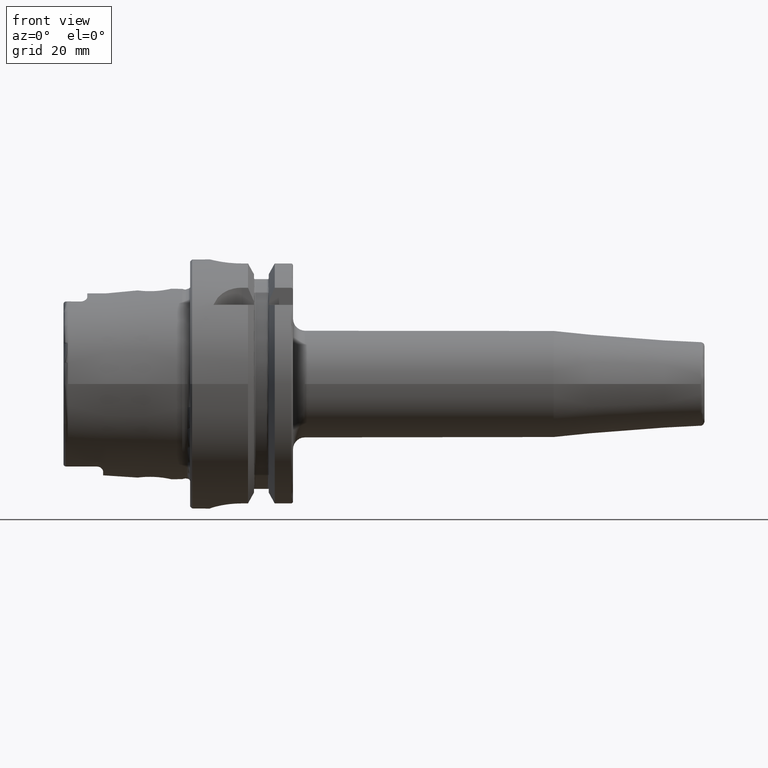
[diagram: clean part render]
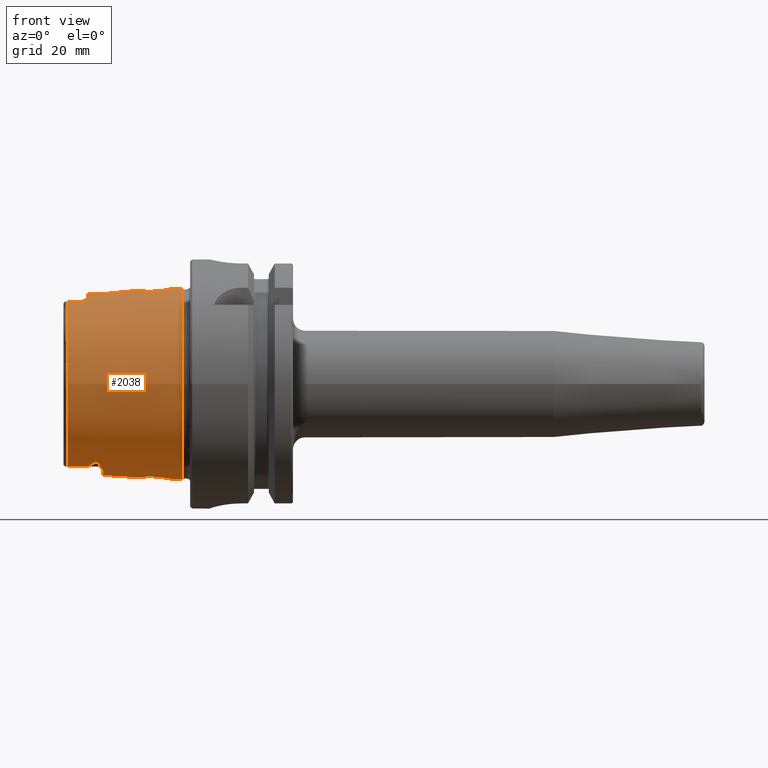
[diagram: same view with one face highlighted and labeled with its STEP entity id]
A machine part, front view. The second image highlights one B-rep face of the part: STEP entity #2038.
In plain terms, the highlighted conical surface has half-angle 2.868 deg.
Its self-contained STEP definition (entity closure, byte-faithful):
#15=(
BOUNDED_CURVE()
B_SPLINE_CURVE(2,(#3471,#3472,#3473),.UNSPECIFIED.,.F.,.F.)
B_SPLINE_CURVE_WITH_KNOTS((3,3),(0.409626932432081,0.704053423593105),
 .UNSPECIFIED.)
CURVE()
GEOMETRIC_REPRESENTATION_ITEM()
RATIONAL_B_SPLINE_CURVE((1.00336468859939,1.00336468859939,1.00162640098087))
REPRESENTATION_ITEM('')
);
#16=(
BOUNDED_CURVE()
B_SPLINE_CURVE(2,(#3538,#3539,#3540),.UNSPECIFIED.,.F.,.F.)
B_SPLINE_CURVE_WITH_KNOTS((3,3),(0.115200441271059,0.409626932432082),
 .UNSPECIFIED.)
CURVE()
GEOMETRIC_REPRESENTATION_ITEM()
RATIONAL_B_SPLINE_CURVE((1.00162640098087,1.00336468859939,1.00336468859939))
REPRESENTATION_ITEM('')
);
#31=B_SPLINE_CURVE_WITH_KNOTS('',3,(#3157,#3158,#3159,#3160,#3161,#3162,
#3163,#3164,#3165,#3166,#3167,#3168,#3169,#3170,#3171,#3172,#3173,#3174),
 .UNSPECIFIED.,.F.,.F.,(4,2,2,2,2,2,2,2,4),(0.937345209538582,1.02529838322405,
1.19618144709472,1.36706451096539,1.42680307053412,1.48654163010284,1.50096970945234,
1.50818374912708,1.51539778880183),.UNSPECIFIED.);
#34=B_SPLINE_CURVE_WITH_KNOTS('',3,(#3225,#3226,#3227,#3228,#3229,#3230,
#3231,#3232,#3233,#3234,#3235,#3236,#3237,#3238,#3239,#3240,#3241,#3242),
 .UNSPECIFIED.,.F.,.F.,(4,2,2,2,2,2,2,2,4),(1.51539778880184,1.52261182847659,
1.52982586815134,1.54425394750083,1.60399250706955,1.66373106663827,1.83461413050895,
2.00549719437962,2.0934503680651),.UNSPECIFIED.);
#36=B_SPLINE_CURVE_WITH_KNOTS('',3,(#3280,#3281,#3282,#3283,#3284,#3285,
#3286,#3287),.UNSPECIFIED.,.F.,.F.,(4,2,2,4),(1.77153596711132,1.83492838643131,
2.00584149209106,2.09371558288111),.UNSPECIFIED.);
#37=B_SPLINE_CURVE_WITH_KNOTS('',3,(#3304,#3305,#3306,#3307,#3308,#3309,
#3310,#3311),.UNSPECIFIED.,.F.,.F.,(4,2,2,4),(0.937604543168422,1.02547863395848,
1.19639173961822,1.25978415893822),.UNSPECIFIED.);
#41=B_SPLINE_CURVE_WITH_KNOTS('',3,(#3443,#3444,#3445,#3446,#3447,#3448,
#3449,#3450,#3451,#3452,#3453,#3454,#3455,#3456,#3457,#3458,#3459,#3460,
#3461,#3462,#3463),.UNSPECIFIED.,.T.,.F.,(4,1,1,1,1,1,1,1,1,1,1,1,1,1,1,
1,1,1,4),(-2.26557970640445,-2.10375258451842,-1.94192546263239,-1.86101190168937,
-1.78009834074636,-1.61827121886032,-1.45644409697429,-1.37553053603127,
-1.29461697508826,-1.18673222716424,-1.07884747924022,-0.970962731316194,
-0.863077983392173,-0.755193235468151,-0.647308487544129,-0.485481365658097,
-0.323654243772065,-0.161827121886032,0.),.UNSPECIFIED.);
#42=B_SPLINE_CURVE_WITH_KNOTS('',3,(#3475,#3476,#3477,#3478,#3479,#3480,
#3481,#3482,#3483,#3484,#3485,#3486,#3487,#3488,#3489,#3490,#3491,#3492),
 .UNSPECIFIED.,.F.,.F.,(4,2,2,2,2,2,2,2,4),(0.,0.0903555875079969,0.135533381261995,
0.180711175015994,0.191679253692351,0.19716329303053,0.202647332368709,
0.208141673454593,0.210684760739668),.UNSPECIFIED.);
#43=B_SPLINE_CURVE_WITH_KNOTS('',3,(#3494,#3495,#3496,#3497,#3498,#3499,
#3500,#3501,#3502,#3503),.UNSPECIFIED.,.F.,.F.,(4,2,2,2,4),(0.278659319230644,
0.333918541832918,0.442805459609059,0.482035165304725,0.500954004489182),
 .UNSPECIFIED.);
#44=B_SPLINE_CURVE_WITH_KNOTS('',3,(#3507,#3508,#3509,#3510,#3511,#3512,
#3513,#3514,#3515,#3516,#3517,#3518),.UNSPECIFIED.,.F.,.F.,(4,2,2,2,2,4),
(0.500954004487676,0.50386398744684,0.528331134037123,0.580812359186529,
0.712749669755937,0.726249722962502),.UNSPECIFIED.);
#45=B_SPLINE_CURVE_WITH_KNOTS('',3,(#3520,#3521,#3522,#3523,#3524,#3525,
#3526,#3527,#3528,#3529,#3530,#3531,#3532,#3533,#3534,#3535,#3536,#3537),
 .UNSPECIFIED.,.F.,.F.,(4,2,2,2,2,2,2,2,4),(0.599581967500703,0.602125054785784,
0.607619395871668,0.613103435209847,0.618587474548027,0.629555553224386,
0.674733346978385,0.719911140732385,0.810266728240384),.UNSPECIFIED.);
#46=B_SPLINE_CURVE_WITH_KNOTS('',3,(#3543,#3544,#3545,#3546,#3547,#3548,
#3549,#3550,#3551,#3552,#3553,#3554,#3555,#3556),.UNSPECIFIED.,.F.,.F.,
(4,2,2,2,2,2,4),(0.612787130114313,0.692070205833102,0.846913877835571,
0.923866042650838,0.97973233720279,1.02631946127952,1.05465853457734),
 .UNSPECIFIED.);
#47=B_SPLINE_CURVE_WITH_KNOTS('',3,(#3559,#3560,#3561,#3562,#3563,#3564,
#3565,#3566,#3567,#3568,#3569,#3570,#3571,#3572),.UNSPECIFIED.,.F.,.F.,
(4,2,2,2,2,2,4),(0.413162960284885,0.443293122422243,0.485069563612126,
0.532728756474865,0.604908335246701,0.737193690325506,0.813919818316776),
 .UNSPECIFIED.);
#48=B_SPLINE_CURVE_WITH_KNOTS('',3,(#3575,#3576,#3577,#3578,#3579,#3580,
#3581,#3582,#3583,#3584,#3585,#3586,#3587,#3588,#3589,#3590,#3591,#3592,
#3593,#3594,#3595),.UNSPECIFIED.,.T.,.F.,(4,1,1,1,1,1,1,1,1,1,1,1,1,1,1,
1,1,1,4),(-2.26557970640445,-2.10375258451842,-1.94192546263239,-1.78009834074636,
-1.61827121886032,-1.45644409697429,-1.37553053603127,-1.29461697508826,
-1.18673222716424,-1.07884747924022,-1.0249051052782,-0.970962731316194,
-0.755193235468151,-0.647308487544129,-0.485481365658097,-0.404567804715081,
-0.323654243772065,-0.161827121886032,0.),.UNSPECIFIED.);
#95=FACE_BOUND('',#373,.T.);
#96=FACE_BOUND('',#374,.T.);
#245=FACE_OUTER_BOUND('',#372,.T.);
#372=EDGE_LOOP('',(#1495,#1496,#1497,#1498,#1499,#1500,#1501,#1502,#1503,
#1504,#1505,#1506,#1507,#1508,#1509,#1510,#1511,#1512,#1513,#1514));
#373=EDGE_LOOP('',(#1515));
#374=EDGE_LOOP('',(#1516));
#511=LINE('',#3468,#621);
#621=VECTOR('',#2609,23.4974838444284);
#725=CIRCLE('',#2228,24.2204308617234);
#726=CIRCLE('',#2229,22.7745368271334);
#727=CIRCLE('',#2230,23.2184268537074);
#728=CIRCLE('',#2231,22.7745368271334);
#729=CIRCLE('',#2232,23.0180260521042);
#730=CIRCLE('',#2233,22.7745368271334);
#860=VERTEX_POINT('',#3154);
#861=VERTEX_POINT('',#3156);
#871=VERTEX_POINT('',#3211);
#872=VERTEX_POINT('',#3224);
#882=VERTEX_POINT('',#3266);
#883=VERTEX_POINT('',#3279);
#889=VERTEX_POINT('',#3301);
#890=VERTEX_POINT('',#3303);
#893=VERTEX_POINT('',#3414);
#896=VERTEX_POINT('',#3465);
#897=VERTEX_POINT('',#3467);
#898=VERTEX_POINT('',#3470);
#899=VERTEX_POINT('',#3474);
#900=VERTEX_POINT('',#3493);
#901=VERTEX_POINT('',#3504);
#902=VERTEX_POINT('',#3506);
#903=VERTEX_POINT('',#3519);
#904=VERTEX_POINT('',#3542);
#905=VERTEX_POINT('',#3557);
#906=VERTEX_POINT('',#3574);
#1082=EDGE_CURVE('',#861,#860,#31,.T.);
#1096=EDGE_CURVE('',#872,#871,#34,.T.);
#1109=EDGE_CURVE('',#883,#882,#36,.T.);
#1117=EDGE_CURVE('',#890,#889,#37,.T.);
#1125=EDGE_CURVE('',#893,#893,#41,.T.);
#1126=EDGE_CURVE('',#896,#896,#725,.T.);
#1127=EDGE_CURVE('',#896,#897,#511,.T.);
#1128=EDGE_CURVE('',#897,#861,#726,.T.);
#1129=EDGE_CURVE('',#860,#898,#15,.T.);
#1130=EDGE_CURVE('',#899,#898,#42,.T.);
#1131=EDGE_CURVE('',#900,#899,#43,.T.);
#1132=EDGE_CURVE('',#900,#901,#727,.T.);
#1133=EDGE_CURVE('',#902,#901,#44,.T.);
#1134=EDGE_CURVE('',#903,#902,#45,.T.);
#1135=EDGE_CURVE('',#903,#872,#16,.T.);
#1136=EDGE_CURVE('',#871,#890,#728,.T.);
#1137=EDGE_CURVE('',#904,#889,#46,.T.);
#1138=EDGE_CURVE('',#904,#905,#729,.T.);
#1139=EDGE_CURVE('',#883,#905,#47,.T.);
#1140=EDGE_CURVE('',#882,#897,#730,.T.);
#1141=EDGE_CURVE('',#906,#906,#48,.T.);
#1495=ORIENTED_EDGE('',*,*,#1126,.F.);
#1496=ORIENTED_EDGE('',*,*,#1127,.T.);
#1497=ORIENTED_EDGE('',*,*,#1128,.T.);
#1498=ORIENTED_EDGE('',*,*,#1082,.T.);
#1499=ORIENTED_EDGE('',*,*,#1129,.T.);
#1500=ORIENTED_EDGE('',*,*,#1130,.F.);
#1501=ORIENTED_EDGE('',*,*,#1131,.F.);
#1502=ORIENTED_EDGE('',*,*,#1132,.T.);
#1503=ORIENTED_EDGE('',*,*,#1133,.F.);
#1504=ORIENTED_EDGE('',*,*,#1134,.F.);
#1505=ORIENTED_EDGE('',*,*,#1135,.T.);
#1506=ORIENTED_EDGE('',*,*,#1096,.T.);
#1507=ORIENTED_EDGE('',*,*,#1136,.T.);
#1508=ORIENTED_EDGE('',*,*,#1117,.T.);
#1509=ORIENTED_EDGE('',*,*,#1137,.F.);
#1510=ORIENTED_EDGE('',*,*,#1138,.T.);
#1511=ORIENTED_EDGE('',*,*,#1139,.F.);
#1512=ORIENTED_EDGE('',*,*,#1109,.T.);
#1513=ORIENTED_EDGE('',*,*,#1140,.T.);
#1514=ORIENTED_EDGE('',*,*,#1127,.F.);
#1515=ORIENTED_EDGE('',*,*,#1141,.F.);
#1516=ORIENTED_EDGE('',*,*,#1125,.F.);
#1994=CONICAL_SURFACE('',#2227,23.4974838444284,0.0500583457465973);
#2038=ADVANCED_FACE('',(#245,#95,#96),#1994,.T.);
#2227=AXIS2_PLACEMENT_3D('',#3464,#2605,#2606);
#2228=AXIS2_PLACEMENT_3D('',#3466,#2607,#2608);
#2229=AXIS2_PLACEMENT_3D('',#3469,#2610,#2611);
#2230=AXIS2_PLACEMENT_3D('',#3505,#2612,#2613);
#2231=AXIS2_PLACEMENT_3D('',#3541,#2614,#2615);
#2232=AXIS2_PLACEMENT_3D('',#3558,#2616,#2617);
#2233=AXIS2_PLACEMENT_3D('',#3573,#2618,#2619);
#2605=DIRECTION('center_axis',(1.,0.,0.));
#2606=DIRECTION('ref_axis',(0.,1.,0.));
#2607=DIRECTION('center_axis',(1.,0.,0.));
#2608=DIRECTION('ref_axis',(0.,0.,-1.));
#2609=DIRECTION('',(-0.998747342623037,0.0500374420151821,6.1278193201414E-18));
#2610=DIRECTION('center_axis',(1.,0.,0.));
#2611=DIRECTION('ref_axis',(0.,0.,-1.));
#2612=DIRECTION('center_axis',(1.,0.,0.));
#2613=DIRECTION('ref_axis',(0.,1.,0.));
#2614=DIRECTION('center_axis',(1.,0.,0.));
#2615=DIRECTION('ref_axis',(0.,0.,-1.));
#2616=DIRECTION('center_axis',(1.,0.,0.));
#2617=DIRECTION('ref_axis',(0.,1.,0.));
#2618=DIRECTION('center_axis',(1.,0.,0.));
#2619=DIRECTION('ref_axis',(0.,0.,-1.));
#3154=CARTESIAN_POINT('',(-25.0978148584663,-10.4556386714692,-20.5570425901345));
#3156=CARTESIAN_POINT('',(-30.8600449304182,-9.1175788960984,-20.8698175067219));
#3157=CARTESIAN_POINT('Ctrl Pts',(-30.8600449304182,-9.11757889609839,-20.8698175067219));
#3158=CARTESIAN_POINT('Ctrl Pts',(-30.5458909643235,-9.15590567779842,-20.8702489912062));
#3159=CARTESIAN_POINT('Ctrl Pts',(-30.2333885582947,-9.19553638844306,-20.8699331931734));
#3160=CARTESIAN_POINT('Ctrl Pts',(-29.3200764392134,-9.31683719872071,-20.8662835753638));
#3161=CARTESIAN_POINT('Ctrl Pts',(-28.7253632733503,-9.40260250516231,-20.8605355436413));
#3162=CARTESIAN_POINT('Ctrl Pts',(-27.5600080230793,-9.59491882494623,-20.8370744460606));
#3163=CARTESIAN_POINT('Ctrl Pts',(-26.9889879780948,-9.69930871486833,-20.8204848534175));
#3164=CARTESIAN_POINT('Ctrl Pts',(-26.243078447761,-9.87995363103469,-20.7763753921414));
#3165=CARTESIAN_POINT('Ctrl Pts',(-26.0321916389,-9.93536599911181,-20.7617058242075));
#3166=CARTESIAN_POINT('Ctrl Pts',(-25.6226314158803,-10.0671936374524,-20.7209199758996));
#3167=CARTESIAN_POINT('Ctrl Pts',(-25.4220827984544,-10.138547720478,-20.6974983203461));
#3168=CARTESIAN_POINT('Ctrl Pts',(-25.2208246412483,-10.2713306216733,-20.6428847988051));
#3169=CARTESIAN_POINT('Ctrl Pts',(-25.1803732229877,-10.3024924958121,-20.6296329719333));
#3170=CARTESIAN_POINT('Ctrl Pts',(-25.1342239230183,-10.3555186194877,-20.6056268137561));
#3171=CARTESIAN_POINT('Ctrl Pts',(-25.1212840412597,-10.3742534446523,-20.5969290505833));
#3172=CARTESIAN_POINT('Ctrl Pts',(-25.10307563401,-10.4135952575897,-20.5780886428205));
#3173=CARTESIAN_POINT('Ctrl Pts',(-25.0978148584663,-10.434204936409,-20.5679441285336));
#3174=CARTESIAN_POINT('Ctrl Pts',(-25.0978148584663,-10.4556386714692,-20.5570425901345));
#3211=CARTESIAN_POINT('',(-30.8600449304182,9.1175788960984,-20.8698175067219));
#3224=CARTESIAN_POINT('',(-25.0978148584663,10.4556386714692,-20.5570425901345));
#3225=CARTESIAN_POINT('Ctrl Pts',(-25.0978148584663,10.4556386714692,-20.5570425901345));
#3226=CARTESIAN_POINT('Ctrl Pts',(-25.0978148584663,10.434204936409,-20.5679441285336));
#3227=CARTESIAN_POINT('Ctrl Pts',(-25.1030756340098,10.4135952575897,-20.5780886428205));
#3228=CARTESIAN_POINT('Ctrl Pts',(-25.1212840412595,10.3742534446523,-20.5969290505833));
#3229=CARTESIAN_POINT('Ctrl Pts',(-25.1342239230183,10.3555186194877,-20.605626813756));
#3230=CARTESIAN_POINT('Ctrl Pts',(-25.1803732229877,10.3024924958122,-20.6296329719333));
#3231=CARTESIAN_POINT('Ctrl Pts',(-25.2208246412482,10.2713306216733,-20.6428847988051));
#3232=CARTESIAN_POINT('Ctrl Pts',(-25.4220827984543,10.138547720478,-20.6974983203461));
#3233=CARTESIAN_POINT('Ctrl Pts',(-25.6226314158802,10.0671936374525,-20.7209199758995));
#3234=CARTESIAN_POINT('Ctrl Pts',(-26.0321916388999,9.93536599911188,-20.7617058242075));
#3235=CARTESIAN_POINT('Ctrl Pts',(-26.2430784477608,9.8799536310347,-20.7763753921414));
#3236=CARTESIAN_POINT('Ctrl Pts',(-26.9889879780946,9.69930871486834,-20.8204848534175));
#3237=CARTESIAN_POINT('Ctrl Pts',(-27.5600080230791,9.59491882494626,-20.8370744460606));
#3238=CARTESIAN_POINT('Ctrl Pts',(-28.7253632733501,9.40260250516234,-20.8605355436413));
#3239=CARTESIAN_POINT('Ctrl Pts',(-29.3200764392133,9.31683719872073,-20.8662835753638));
#3240=CARTESIAN_POINT('Ctrl Pts',(-30.2333885582946,9.19553638844306,-20.8699331931734));
#3241=CARTESIAN_POINT('Ctrl Pts',(-30.5458909643235,9.15590567779843,-20.8702489912062));
#3242=CARTESIAN_POINT('Ctrl Pts',(-30.8600449304182,9.11757889609839,-20.8698175067219));
#3266=CARTESIAN_POINT('',(-30.8600449304182,-9.1175788960984,20.8698175067219));
#3279=CARTESIAN_POINT('',(-27.5000000000755,-9.61067758640857,20.8329168403914));
#3280=CARTESIAN_POINT('Ctrl Pts',(-27.500000000078,-9.61067758642201,20.8329168403892));
#3281=CARTESIAN_POINT('Ctrl Pts',(-27.7125737548958,-9.57148784129481,20.8392673030342));
#3282=CARTESIAN_POINT('Ctrl Pts',(-27.9270578144772,-9.53434241390281,20.8444654011212));
#3283=CARTESIAN_POINT('Ctrl Pts',(-28.7259960474271,-9.40250589525003,20.8605443506117));
#3284=CARTESIAN_POINT('Ctrl Pts',(-29.3208153495341,-9.3167323629879,20.8662898636256));
#3285=CARTESIAN_POINT('Ctrl Pts',(-30.2339565561897,-9.19546438357122,20.8699337533607));
#3286=CARTESIAN_POINT('Ctrl Pts',(-30.5461763429502,-9.15587086160794,20.8702485992441));
#3287=CARTESIAN_POINT('Ctrl Pts',(-30.8600449304182,-9.11757889609839,20.8698175067219));
#3301=CARTESIAN_POINT('',(-27.5000000000755,9.61067758640857,20.8329168403914));
#3303=CARTESIAN_POINT('',(-30.8600449304182,9.1175788960984,20.8698175067219));
#3304=CARTESIAN_POINT('Ctrl Pts',(-30.8600449304182,9.11757889609839,20.8698175067219));
#3305=CARTESIAN_POINT('Ctrl Pts',(-30.5461763429502,9.15587086160794,20.8702485992441));
#3306=CARTESIAN_POINT('Ctrl Pts',(-30.2339565561898,9.1954643835712,20.8699337533607));
#3307=CARTESIAN_POINT('Ctrl Pts',(-29.3208153495341,9.31673236298789,20.8662898636256));
#3308=CARTESIAN_POINT('Ctrl Pts',(-28.7259960474271,9.40250589525004,20.8605443506117));
#3309=CARTESIAN_POINT('Ctrl Pts',(-27.9270578144772,9.53434241390281,20.8444654011213));
#3310=CARTESIAN_POINT('Ctrl Pts',(-27.7125737548958,9.57148784129481,20.8392673030342));
#3311=CARTESIAN_POINT('Ctrl Pts',(-27.500000000078,9.61067758642201,20.8329168403892));
#3414=CARTESIAN_POINT('',(-9.02925407423461,4.24282684078987,-23.4881339907642));
#3443=CARTESIAN_POINT('Ctrl Pts',(-9.02925407423461,4.24282684078987,-23.4881339907642));
#3444=CARTESIAN_POINT('Ctrl Pts',(-8.41794937729802,4.24763962021184,-23.5183867686952));
#3445=CARTESIAN_POINT('Ctrl Pts',(-7.09719062335626,3.96214027152736,-23.6400391343347));
#3446=CARTESIAN_POINT('Ctrl Pts',(-5.85872384144614,2.97350456469995,-23.8514262488192));
#3447=CARTESIAN_POINT('Ctrl Pts',(-5.16063731756733,1.91003066646729,-23.9915936511341));
#3448=CARTESIAN_POINT('Ctrl Pts',(-4.71967908413408,0.667233683255142,-24.0892210412975));
#3449=CARTESIAN_POINT('Ctrl Pts',(-4.69487671176925,-0.887140287368457,
-24.0946920123011));
#3450=CARTESIAN_POINT('Ctrl Pts',(-5.41575081787389,-2.43754371827964,-23.9347651451498));
#3451=CARTESIAN_POINT('Ctrl Pts',(-6.27200380070453,-3.29839456985501,-23.7808774616528));
#3452=CARTESIAN_POINT('Ctrl Pts',(-7.16157899956841,-3.8911177348338,-23.6460473005722));
#3453=CARTESIAN_POINT('Ctrl Pts',(-8.32145673061719,-4.25090987526345,-23.5228217546797));
#3454=CARTESIAN_POINT('Ctrl Pts',(-9.55257943298201,-4.26858049401254,-23.456823819944));
#3455=CARTESIAN_POINT('Ctrl Pts',(-10.8313666496774,-3.90479981259957,-23.4573341216261));
#3456=CARTESIAN_POINT('Ctrl Pts',(-11.8961422246607,-3.1841113544275,-23.5146565929276));
#3457=CARTESIAN_POINT('Ctrl Pts',(-12.7003698798572,-2.21954630167764,-23.5891273633448));
#3458=CARTESIAN_POINT('Ctrl Pts',(-13.2855020445789,-0.774775065590821,
-23.6608303251767));
#3459=CARTESIAN_POINT('Ctrl Pts',(-13.2993151465013,0.893979362185892,-23.6627026291545));
#3460=CARTESIAN_POINT('Ctrl Pts',(-12.4532300975689,2.72994365265342,-23.5583564408809));
#3461=CARTESIAN_POINT('Ctrl Pts',(-10.9641321027099,3.91707089294868,-23.4490088113463));
#3462=CARTESIAN_POINT('Ctrl Pts',(-9.64055877117117,4.23801406136791,-23.4578812128331));
#3463=CARTESIAN_POINT('Ctrl Pts',(-9.02925407423461,4.24282684078988,-23.4881339907642));
#3464=CARTESIAN_POINT('Origin',(-16.4300224652091,0.,0.));
#3465=CARTESIAN_POINT('',(-2.,-24.2204308617234,-2.96614731287794E-15));
#3466=CARTESIAN_POINT('Origin',(-2.,0.,0.));
#3467=CARTESIAN_POINT('',(-30.8600449304182,-22.7745368271334,-2.78907636274124E-15));
#3468=CARTESIAN_POINT('',(-16.4300224652091,-23.4974838444284,-2.87761183780959E-15));
#3469=CARTESIAN_POINT('Origin',(-30.8600449304182,0.,0.));
#3470=CARTESIAN_POINT('',(-23.5,-12.1698923613067,-19.6851459107563));
#3471=CARTESIAN_POINT('Ctrl Pts',(-25.0978148584663,-10.4556386714692,-20.5570425901345));
#3472=CARTESIAN_POINT('Ctrl Pts',(-25.0978148584663,-11.3112805797553,-20.1218495128239));
#3473=CARTESIAN_POINT('Ctrl Pts',(-23.5,-12.1698923613067,-19.6851459107563));
#3474=CARTESIAN_POINT('',(-22.9409864229987,-10.5046262057925,-20.6533579718259));
#3475=CARTESIAN_POINT('Ctrl Pts',(-22.9409864229987,-10.5046262057925,-20.6533579718259));
#3476=CARTESIAN_POINT('Ctrl Pts',(-22.9409864229987,-10.7730829666602,-20.516816595398));
#3477=CARTESIAN_POINT('Ctrl Pts',(-22.9574206817668,-11.0623666606509,-20.3616089931375));
#3478=CARTESIAN_POINT('Ctrl Pts',(-23.0214299513488,-11.4761009466796,-20.1257517714531));
#3479=CARTESIAN_POINT('Ctrl Pts',(-23.0491283200772,-11.6099871059181,-20.0471312410654));
#3480=CARTESIAN_POINT('Ctrl Pts',(-23.1253497318037,-11.8635092488451,-19.8937049027563));
#3481=CARTESIAN_POINT('Ctrl Pts',(-23.1681553584466,-11.9845149642791,-19.8183788237048));
#3482=CARTESIAN_POINT('Ctrl Pts',(-23.2720205567489,-12.1145084587468,-19.7327054731899));
#3483=CARTESIAN_POINT('Ctrl Pts',(-23.2970638659452,-12.1405120406692,-19.7152346163683));
#3484=CARTESIAN_POINT('Ctrl Pts',(-23.340824213029,-12.1694983830269,-19.6947680043585));
#3485=CARTESIAN_POINT('Ctrl Pts',(-23.3564336502031,-12.1775072041959,-19.6888951705931));
#3486=CARTESIAN_POINT('Ctrl Pts',(-23.3894992563298,-12.1884299822762,-19.6801867490419));
#3487=CARTESIAN_POINT('Ctrl Pts',(-23.4069516148396,-12.191352087042,-19.6773469156348));
#3488=CARTESIAN_POINT('Ctrl Pts',(-23.4435003757557,-12.1903876993059,-19.675790353909));
#3489=CARTESIAN_POINT('Ctrl Pts',(-23.4609883159786,-12.1865341044229,-19.6771480362853));
#3490=CARTESIAN_POINT('Ctrl Pts',(-23.4852443648865,-12.1772664781571,-19.6814547071094));
#3491=CARTESIAN_POINT('Ctrl Pts',(-23.4927247382132,-12.1738018414638,-19.6831574869965));
#3492=CARTESIAN_POINT('Ctrl Pts',(-23.5,-12.1698923613067,-19.6851459107563));
#3493=CARTESIAN_POINT('',(-22.,-7.4031250016059,-22.0065691504051));
#3494=CARTESIAN_POINT('Ctrl Pts',(-22.,-7.4031250016064,-22.0065691504049));
#3495=CARTESIAN_POINT('Ctrl Pts',(-22.,-7.64154328791244,-21.9263639914758));
#3496=CARTESIAN_POINT('Ctrl Pts',(-22.0282316966018,-7.93106690411137,-21.8234540350138));
#3497=CARTESIAN_POINT('Ctrl Pts',(-22.2899989017396,-8.94727995671646,-21.421774019244));
#3498=CARTESIAN_POINT('Ctrl Pts',(-22.60775210997,-9.49253651928731,-21.1610368486918));
#3499=CARTESIAN_POINT('Ctrl Pts',(-22.8524785496019,-10.0580168739411,-20.8800894739587));
#3500=CARTESIAN_POINT('Ctrl Pts',(-22.8997008986804,-10.1907353571143,-20.8128334005565));
#3501=CARTESIAN_POINT('Ctrl Pts',(-22.9350020039233,-10.381785274935,-20.7158310407179));
#3502=CARTESIAN_POINT('Ctrl Pts',(-22.9409864229987,-10.4428555441716,-20.6847755123391));
#3503=CARTESIAN_POINT('Ctrl Pts',(-22.9409864229987,-10.5046262057925,-20.6533579718259));
#3504=CARTESIAN_POINT('',(-22.,7.4031250016059,-22.0065691504051));
#3505=CARTESIAN_POINT('Origin',(-22.,0.,0.));
#3506=CARTESIAN_POINT('',(-22.9409864229987,10.5046262057925,-20.6533579718259));
#3507=CARTESIAN_POINT('Ctrl Pts',(-22.9409864229987,10.5046262057925,-20.6533579718259));
#3508=CARTESIAN_POINT('Ctrl Pts',(-22.9409864229987,10.4951250111927,-20.6581904304467));
#3509=CARTESIAN_POINT('Ctrl Pts',(-22.9408450644905,10.4856070684351,-20.6630311043921));
#3510=CARTESIAN_POINT('Ctrl Pts',(-22.9381719760295,10.3958439048842,-20.7086800932502));
#3511=CARTESIAN_POINT('Ctrl Pts',(-22.9258072553349,10.3185989460598,-20.747952822378));
#3512=CARTESIAN_POINT('Ctrl Pts',(-22.8649803787077,10.0769327863764,-20.8704196245159));
#3513=CARTESIAN_POINT('Ctrl Pts',(-22.7887679321626,9.90306802919886,-20.9581178536208));
#3514=CARTESIAN_POINT('Ctrl Pts',(-22.4484945404157,9.18505116717875,-21.3075925571443));
#3515=CARTESIAN_POINT('Ctrl Pts',(-22.0746753976002,8.47121172659649,-21.631485700585));
#3516=CARTESIAN_POINT('Ctrl Pts',(-22.0031617045067,7.56447021316982,-21.9516456669287));
#3517=CARTESIAN_POINT('Ctrl Pts',(-22.,7.48262387019776,-21.9798253150689));
#3518=CARTESIAN_POINT('Ctrl Pts',(-22.,7.40312500160694,-22.0065691504047));
#3519=CARTESIAN_POINT('',(-23.5,12.1698923613067,-19.6851459107563));
#3520=CARTESIAN_POINT('Ctrl Pts',(-23.5,12.1698923613067,-19.6851459107563));
#3521=CARTESIAN_POINT('Ctrl Pts',(-23.4927247382132,12.1738018414639,-19.6831574869965));
#3522=CARTESIAN_POINT('Ctrl Pts',(-23.4852443648865,12.1772664781571,-19.6814547071094));
#3523=CARTESIAN_POINT('Ctrl Pts',(-23.4609883159786,12.1865341044229,-19.6771480362853));
#3524=CARTESIAN_POINT('Ctrl Pts',(-23.4435003757557,12.190387699306,-19.6757903539089));
#3525=CARTESIAN_POINT('Ctrl Pts',(-23.4069516148396,12.1913520870421,-19.6773469156348));
#3526=CARTESIAN_POINT('Ctrl Pts',(-23.3894992563298,12.1884299822762,-19.6801867490419));
#3527=CARTESIAN_POINT('Ctrl Pts',(-23.3564336502031,12.1775072041959,-19.688895170593));
#3528=CARTESIAN_POINT('Ctrl Pts',(-23.340824213029,12.169498383027,-19.6947680043585));
#3529=CARTESIAN_POINT('Ctrl Pts',(-23.2970638659452,12.1405120406693,-19.7152346163683));
#3530=CARTESIAN_POINT('Ctrl Pts',(-23.2720205567489,12.1145084587468,-19.7327054731899));
#3531=CARTESIAN_POINT('Ctrl Pts',(-23.1681553584466,11.9845149642791,-19.8183788237047));
#3532=CARTESIAN_POINT('Ctrl Pts',(-23.1253497318037,11.8635092488451,-19.8937049027563));
#3533=CARTESIAN_POINT('Ctrl Pts',(-23.0491283200772,11.6099871059182,-20.0471312410654));
#3534=CARTESIAN_POINT('Ctrl Pts',(-23.0214299513488,11.4761009466796,-20.1257517714531));
#3535=CARTESIAN_POINT('Ctrl Pts',(-22.9574206817668,11.0623666606509,-20.3616089931375));
#3536=CARTESIAN_POINT('Ctrl Pts',(-22.9409864229987,10.7730829666602,-20.516816595398));
#3537=CARTESIAN_POINT('Ctrl Pts',(-22.9409864229987,10.5046262057925,-20.6533579718259));
#3538=CARTESIAN_POINT('Ctrl Pts',(-23.5,12.1698923613067,-19.6851459107563));
#3539=CARTESIAN_POINT('Ctrl Pts',(-25.0978148584663,11.3112805797553,-20.1218495128239));
#3540=CARTESIAN_POINT('Ctrl Pts',(-25.0978148584662,10.4556386714692,-20.5570425901345));
#3541=CARTESIAN_POINT('Origin',(-30.8600449304182,0.,0.));
#3542=CARTESIAN_POINT('',(-26.,7.14127219004964,21.8822246319466));
#3543=CARTESIAN_POINT('Ctrl Pts',(-26.,7.14127219004961,21.8822246319466));
#3544=CARTESIAN_POINT('Ctrl Pts',(-26.,7.38735946023371,21.801913959314));
#3545=CARTESIAN_POINT('Ctrl Pts',(-26.033972788753,7.63482296419265,21.7146832850108));
#3546=CARTESIAN_POINT('Ctrl Pts',(-26.2194423861809,8.34889404999889,21.4446815988103));
#3547=CARTESIAN_POINT('Ctrl Pts',(-26.4428793547878,8.75952114583654,21.2645357982171));
#3548=CARTESIAN_POINT('Ctrl Pts',(-26.7590254549197,9.19092879202869,21.0625769757814));
#3549=CARTESIAN_POINT('Ctrl Pts',(-26.8729708291721,9.32104212441475,20.9987774802421));
#3550=CARTESIAN_POINT('Ctrl Pts',(-27.0716948778125,9.49280512119961,20.9106159819251));
#3551=CARTESIAN_POINT('Ctrl Pts',(-27.144806553738,9.53932652154805,20.8852782118319));
#3552=CARTESIAN_POINT('Ctrl Pts',(-27.2637975599135,9.59417850538166,20.8535668796639));
#3553=CARTESIAN_POINT('Ctrl Pts',(-27.322222387454,9.61219549867679,20.8420263003947));
#3554=CARTESIAN_POINT('Ctrl Pts',(-27.4236635149584,9.61988157707407,20.8328813745288));
#3555=CARTESIAN_POINT('Ctrl Pts',(-27.4617925463603,9.61772144927266,20.8317754247499));
#3556=CARTESIAN_POINT('Ctrl Pts',(-27.5000000000779,9.61067758642203,20.8329168403892));
#3557=CARTESIAN_POINT('',(-26.,-7.14127219004964,21.8822246319466));
#3558=CARTESIAN_POINT('Origin',(-26.,0.,0.));
#3559=CARTESIAN_POINT('Ctrl Pts',(-27.500000000078,-9.610677586422,20.8329168403892));
#3560=CARTESIAN_POINT('Ctrl Pts',(-27.4634308025005,-9.61741942308555,20.8318243662782));
#3561=CARTESIAN_POINT('Ctrl Pts',(-27.4260889661871,-9.61985292316152,20.8327607188551));
#3562=CARTESIAN_POINT('Ctrl Pts',(-27.3343377981765,-9.61339298685805,20.8408051456548));
#3563=CARTESIAN_POINT('Ctrl Pts',(-27.2828394544385,-9.59996378018902,20.8498476845684));
#3564=CARTESIAN_POINT('Ctrl Pts',(-27.1765640574038,-9.55615724159004,20.8758218933212));
#3565=CARTESIAN_POINT('Ctrl Pts',(-27.111584300389,-9.51976030908576,20.8961199655304));
#3566=CARTESIAN_POINT('Ctrl Pts',(-26.9153060284285,-9.36478934458731,20.9769473005223));
#3567=CARTESIAN_POINT('Ctrl Pts',(-26.7955937204007,-9.23492374831594,21.0413520243865));
#3568=CARTESIAN_POINT('Ctrl Pts',(-26.4809422997755,-8.82026009617074,21.2370375105362));
#3569=CARTESIAN_POINT('Ctrl Pts',(-26.2539798154924,-8.42841535117176,21.4117405279022));
#3570=CARTESIAN_POINT('Ctrl Pts',(-26.0395031937781,-7.68065048502185,21.6986739773255));
#3571=CARTESIAN_POINT('Ctrl Pts',(-26.,-7.40668123592282,21.7956082905937));
#3572=CARTESIAN_POINT('Ctrl Pts',(-26.,-7.14127219004964,21.8822246319466));
#3573=CARTESIAN_POINT('Origin',(-30.8600449304182,0.,0.));
#3574=CARTESIAN_POINT('',(-9.0292540742346,4.24282684078987,23.4881339907642));
#3575=CARTESIAN_POINT('Ctrl Pts',(-9.0292540742346,4.24282684078987,23.4881339907642));
#3576=CARTESIAN_POINT('Ctrl Pts',(-9.64055877117117,4.23801406136791,23.4578812128331));
#3577=CARTESIAN_POINT('Ctrl Pts',(-10.9638730702336,3.91798236438986,23.4489970857899));
#3578=CARTESIAN_POINT('Ctrl Pts',(-12.4525958595704,2.72863690378587,23.5583136537412));
#3579=CARTESIAN_POINT('Ctrl Pts',(-13.2979904921632,0.897590812051159,23.6626376623402));
#3580=CARTESIAN_POINT('Ctrl Pts',(-13.2815658701657,-0.98999302529681,23.6604426532769));
#3581=CARTESIAN_POINT('Ctrl Pts',(-12.5283174417603,-2.51201387505666,23.5683654759453));
#3582=CARTESIAN_POINT('Ctrl Pts',(-11.6444040622836,-3.36174194412279,23.50003047831));
#3583=CARTESIAN_POINT('Ctrl Pts',(-10.7212741834396,-3.93934579023148,23.4568699868312));
#3584=CARTESIAN_POINT('Ctrl Pts',(-9.5509992773888,-4.26722573729756,23.4569375771407));
#3585=CARTESIAN_POINT('Ctrl Pts',(-8.52867241778628,-4.25003876713782,23.5122547979276));
#3586=CARTESIAN_POINT('Ctrl Pts',(-7.68780586799832,-4.05338928451488,23.5899164151454));
#3587=CARTESIAN_POINT('Ctrl Pts',(-6.48553931138608,-3.55436322843895,23.7337139580667));
#3588=CARTESIAN_POINT('Ctrl Pts',(-5.4130820429913,-2.55345835746536,23.93595268899));
#3589=CARTESIAN_POINT('Ctrl Pts',(-4.69884914086794,-0.680968659887892,
24.0937023327386));
#3590=CARTESIAN_POINT('Ctrl Pts',(-4.71937382006398,0.664900361610849,24.08935727819));
#3591=CARTESIAN_POINT('Ctrl Pts',(-5.16062521092841,1.90899044718831,23.9916071295055));
#3592=CARTESIAN_POINT('Ctrl Pts',(-5.8586063866709,2.97237256239872,23.8514805565406));
#3593=CARTESIAN_POINT('Ctrl Pts',(-7.09720951544069,3.96193589367342,23.6400338901471));
#3594=CARTESIAN_POINT('Ctrl Pts',(-8.41794937729801,4.24763962021184,23.5183867686952));
#3595=CARTESIAN_POINT('Ctrl Pts',(-9.0292540742346,4.24282684078988,23.4881339907642));